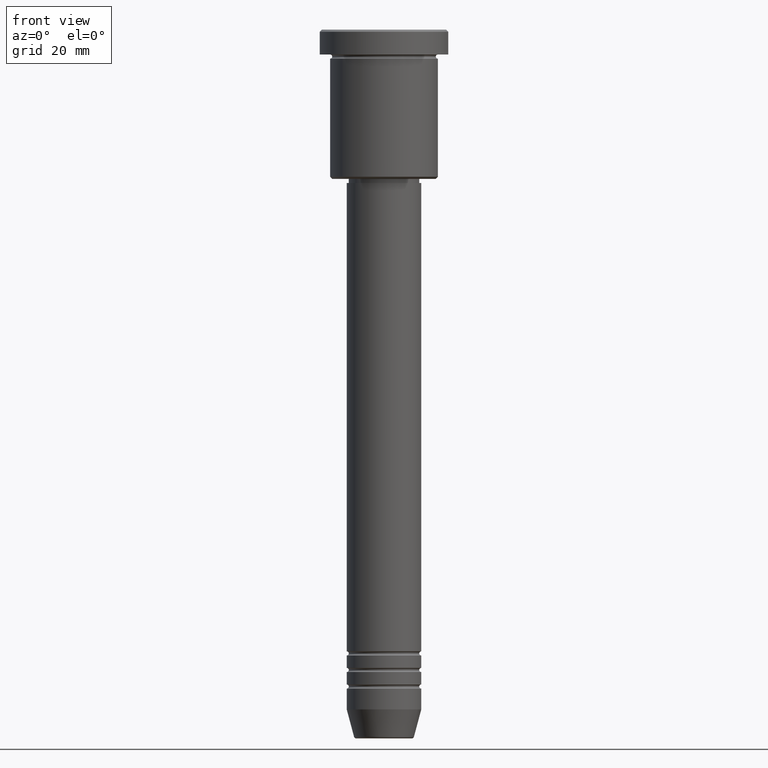
[diagram: clean part render]
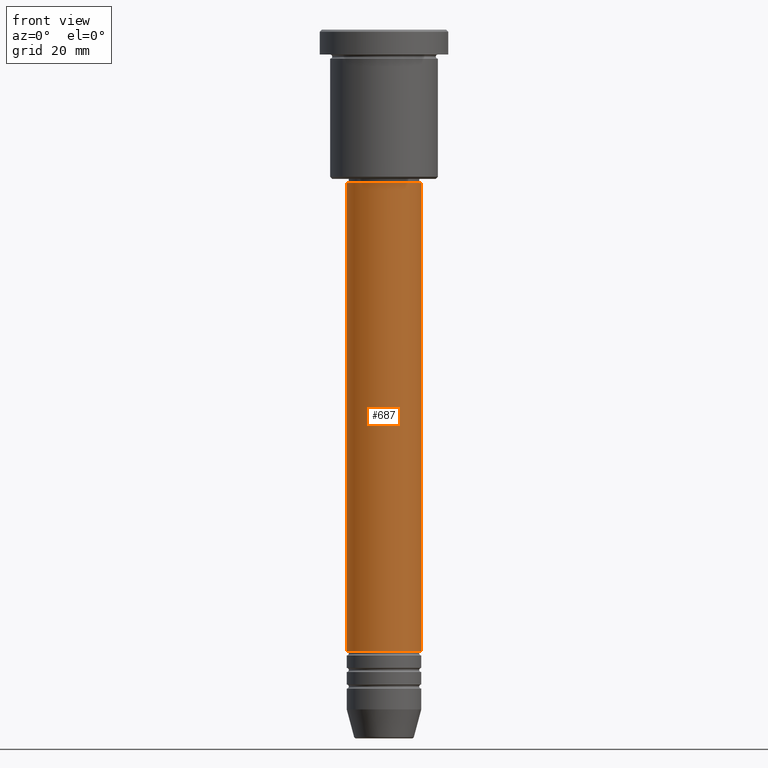
[diagram: same view with one face highlighted and labeled with its STEP entity id]
A machine part, front view. The second image highlights one B-rep face of the part: STEP entity #687.
In plain terms, the highlighted cylindrical surface (partial cylindrical patch) has radius 9 mm, axis along (-0, -0, 1).
Its self-contained STEP definition (entity closure, byte-faithful):
#23 = CARTESIAN_POINT ( 'NONE',  ( -9.000000000000000000, 1.102182119232617714E-15, 0.000000000000000000 ) ) ;
#35 = DIRECTION ( 'NONE',  ( 1.000000000000000000, 0.000000000000000000, 0.000000000000000000 ) ) ;
#67 = DIRECTION ( 'NONE',  ( 1.000000000000000000, 0.000000000000000000, 0.000000000000000000 ) ) ;
#81 = FACE_OUTER_BOUND ( 'NONE', #347, .T. ) ;
#84 = CIRCLE ( 'NONE', #102, 9.000000000000001776 ) ;
#97 = ORIENTED_EDGE ( 'NONE', *, *, #864, .T. ) ;
#102 = AXIS2_PLACEMENT_3D ( 'NONE', #531, #1161, #35 ) ;
#131 = CARTESIAN_POINT ( 'NONE',  ( -9.000000000000001776, 1.102182119232617911E-15, -149.9999999999999147 ) ) ;
#146 = CARTESIAN_POINT ( 'NONE',  ( 0.000000000000000000, 0.000000000000000000, -37.00000000000002842 ) ) ;
#186 = VERTEX_POINT ( 'NONE', #131 ) ;
#265 = CIRCLE ( 'NONE', #1006, 8.999999999999998224 ) ;
#279 = VERTEX_POINT ( 'NONE', #695 ) ;
#338 = CARTESIAN_POINT ( 'NONE',  ( 9.000000000000000000, 0.000000000000000000, 0.000000000000000000 ) ) ;
#347 = EDGE_LOOP ( 'NONE', ( #476, #97, #518, #748 ) ) ;
#397 = VERTEX_POINT ( 'NONE', #528 ) ;
#417 = EDGE_CURVE ( 'NONE', #589, #397, #780, .T. ) ;
#458 = CARTESIAN_POINT ( 'NONE',  ( 9.000000000000001776, 0.000000000000000000, -149.9999999999999147 ) ) ;
#472 = DIRECTION ( 'NONE',  ( -0.000000000000000000, -0.000000000000000000, 1.000000000000000000 ) ) ;
#476 = ORIENTED_EDGE ( 'NONE', *, *, #705, .F. ) ;
#518 = ORIENTED_EDGE ( 'NONE', *, *, #417, .T. ) ;
#528 = CARTESIAN_POINT ( 'NONE',  ( 8.999999999999998224, 0.000000000000000000, -37.00000000000002842 ) ) ;
#531 = CARTESIAN_POINT ( 'NONE',  ( 0.000000000000000000, 0.000000000000000000, -149.9999999999999147 ) ) ;
#579 = DIRECTION ( 'NONE',  ( 1.000000000000000000, 0.000000000000000000, 0.000000000000000000 ) ) ;
#589 = VERTEX_POINT ( 'NONE', #458 ) ;
#647 = CYLINDRICAL_SURFACE ( 'NONE', #841, 9.000000000000000000 ) ;
#687 = ADVANCED_FACE ( 'NONE', ( #81 ), #647, .T. ) ;
#695 = CARTESIAN_POINT ( 'NONE',  ( -8.999999999999998224, 1.102182119232617714E-15, -37.00000000000002842 ) ) ;
#705 = EDGE_CURVE ( 'NONE', #186, #279, #942, .T. ) ;
#726 = DIRECTION ( 'NONE',  ( -0.000000000000000000, -0.000000000000000000, 1.000000000000000000 ) ) ;
#744 = VECTOR ( 'NONE', #848, 1000.000000000000000 ) ;
#748 = ORIENTED_EDGE ( 'NONE', *, *, #1010, .F. ) ;
#780 = LINE ( 'NONE', #338, #744 ) ;
#841 = AXIS2_PLACEMENT_3D ( 'NONE', #1073, #472, #579 ) ;
#848 = DIRECTION ( 'NONE',  ( -0.000000000000000000, -0.000000000000000000, 1.000000000000000000 ) ) ;
#864 = EDGE_CURVE ( 'NONE', #186, #589, #84, .T. ) ;
#942 = LINE ( 'NONE', #23, #1181 ) ;
#1006 = AXIS2_PLACEMENT_3D ( 'NONE', #146, #726, #67 ) ;
#1010 = EDGE_CURVE ( 'NONE', #279, #397, #265, .T. ) ;
#1073 = CARTESIAN_POINT ( 'NONE',  ( 0.000000000000000000, 0.000000000000000000, 0.000000000000000000 ) ) ;
#1122 = DIRECTION ( 'NONE',  ( -0.000000000000000000, -0.000000000000000000, 1.000000000000000000 ) ) ;
#1161 = DIRECTION ( 'NONE',  ( -0.000000000000000000, -0.000000000000000000, 1.000000000000000000 ) ) ;
#1181 = VECTOR ( 'NONE', #1122, 1000.000000000000000 ) ;